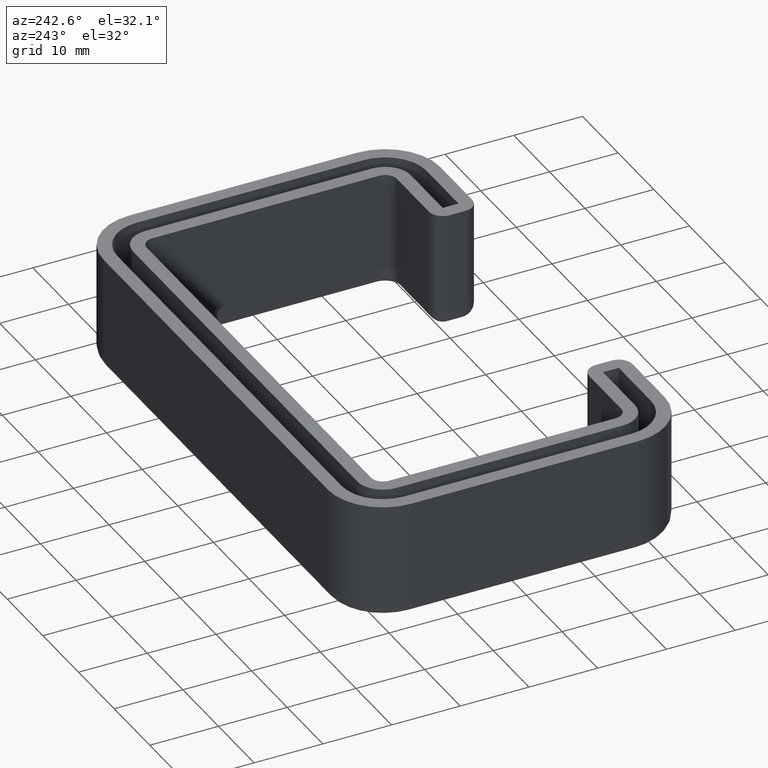
[diagram: clean part render]
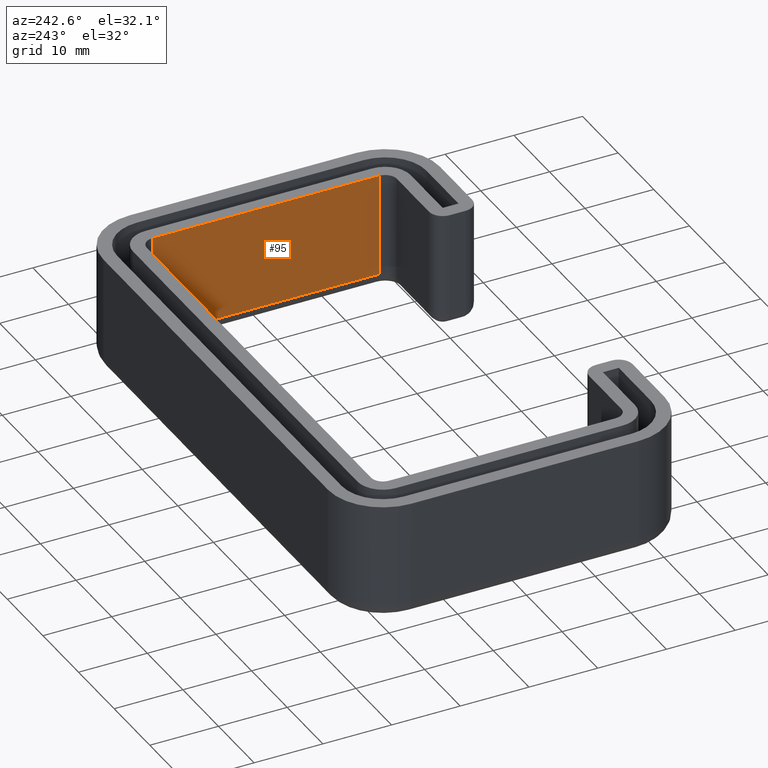
[diagram: same view with one face highlighted and labeled with its STEP entity id]
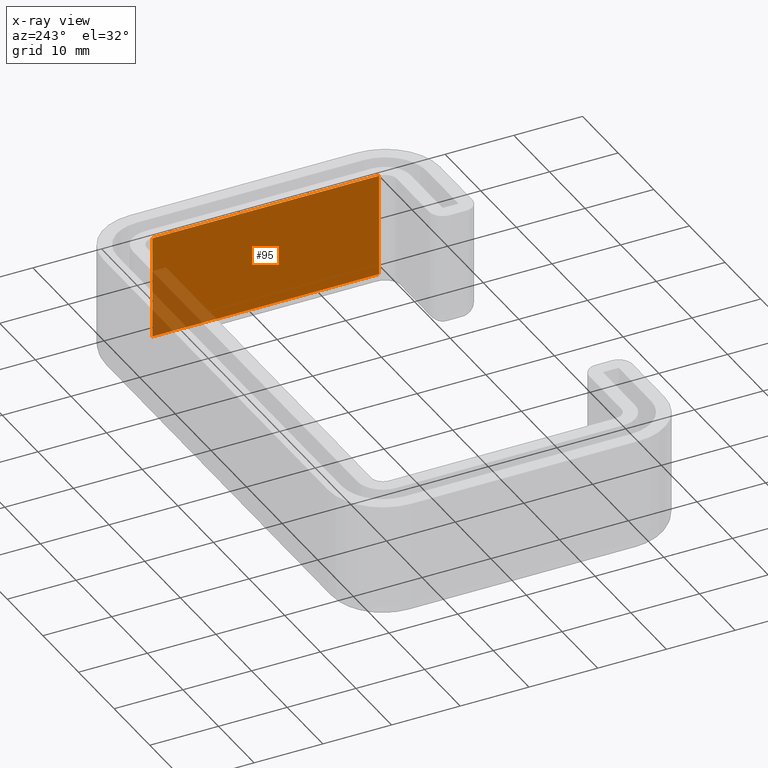
[diagram: x-ray of the same camera — body ghosted, the highlighted face saturated]
A machine part, auxiliary view. The second image highlights one B-rep face of the part: STEP entity #95.
The next image is the same camera in x-ray: the body ghosted, the highlighted face saturated — about 11% of this face is hidden behind the body in this view.
In plain terms, the highlighted planar face has unit normal (-1, 0, 0).
Its self-contained STEP definition (entity closure, byte-faithful):
#95 = ADVANCED_FACE( '', ( #188 ), #189, .T. );
#188 = FACE_OUTER_BOUND( '', #331, .T. );
#189 = PLANE( '', #332 );
#331 = EDGE_LOOP( '', ( #644, #645, #646, #647 ) );
#332 = AXIS2_PLACEMENT_3D( '', #648, #649, #650 );
#644 = ORIENTED_EDGE( '', *, *, #1113, .T. );
#645 = ORIENTED_EDGE( '', *, *, #1114, .T. );
#646 = ORIENTED_EDGE( '', *, *, #1115, .F. );
#647 = ORIENTED_EDGE( '', *, *, #1008, .T. );
#648 = CARTESIAN_POINT( '', ( 33.1999999999998, -16.4999999999999, 1.73472347597681E-015 ) );
#649 = DIRECTION( '', ( -1.00000000000000, 0.000000000000000, 0.000000000000000 ) );
#650 = DIRECTION( '', ( 0.000000000000000, -1.00000000000000, 0.000000000000000 ) );
#1008 = EDGE_CURVE( '', #1195, #1193, #1196, .T. );
#1113 = EDGE_CURVE( '', #1193, #1383, #1385, .T. );
#1114 = EDGE_CURVE( '', #1383, #1386, #1387, .F. );
#1115 = EDGE_CURVE( '', #1195, #1386, #1388, .T. );
#1193 = VERTEX_POINT( '', #1482 );
#1195 = VERTEX_POINT( '', #1484 );
#1196 = LINE( '', #1485, #1486 );
#1383 = VERTEX_POINT( '', #1731 );
#1385 = LINE( '', #1733, #1734 );
#1386 = VERTEX_POINT( '', #1735 );
#1387 = LINE( '', #1736, #1737 );
#1388 = LINE( '', #1738, #1739 );
#1482 = CARTESIAN_POINT( '', ( 33.1999999999998, 16.5000000000001, 1.73472347597681E-015 ) );
#1484 = CARTESIAN_POINT( '', ( 33.1999999999998, -16.4999999999999, 1.73472347597681E-015 ) );
#1485 = CARTESIAN_POINT( '', ( 33.1999999999998, -16.4999999999999, 1.73472347597681E-015 ) );
#1486 = VECTOR( '', #1866, 1000.00000000000 );
#1731 = CARTESIAN_POINT( '', ( 33.1999999999998, 16.5000000000001, -15.0000000000000 ) );
#1733 = CARTESIAN_POINT( '', ( 33.1999999999998, 16.5000000000001, 1.73472347597681E-015 ) );
#1734 = VECTOR( '', #2063, 1000.00000000000 );
#1735 = CARTESIAN_POINT( '', ( 33.1999999999998, -16.4999999999999, -15.0000000000000 ) );
#1736 = CARTESIAN_POINT( '', ( 33.1999999999998, -16.4999999999999, -15.0000000000000 ) );
#1737 = VECTOR( '', #2064, 1000.00000000000 );
#1738 = CARTESIAN_POINT( '', ( 33.1999999999998, -16.4999999999999, 1.73472347597681E-015 ) );
#1739 = VECTOR( '', #2065, 1000.00000000000 );
#1866 = DIRECTION( '', ( 0.000000000000000, 1.00000000000000, 0.000000000000000 ) );
#2063 = DIRECTION( '', ( 0.000000000000000, 0.000000000000000, -1.00000000000000 ) );
#2064 = DIRECTION( '', ( 0.000000000000000, 1.00000000000000, 0.000000000000000 ) );
#2065 = DIRECTION( '', ( 0.000000000000000, 0.000000000000000, -1.00000000000000 ) );